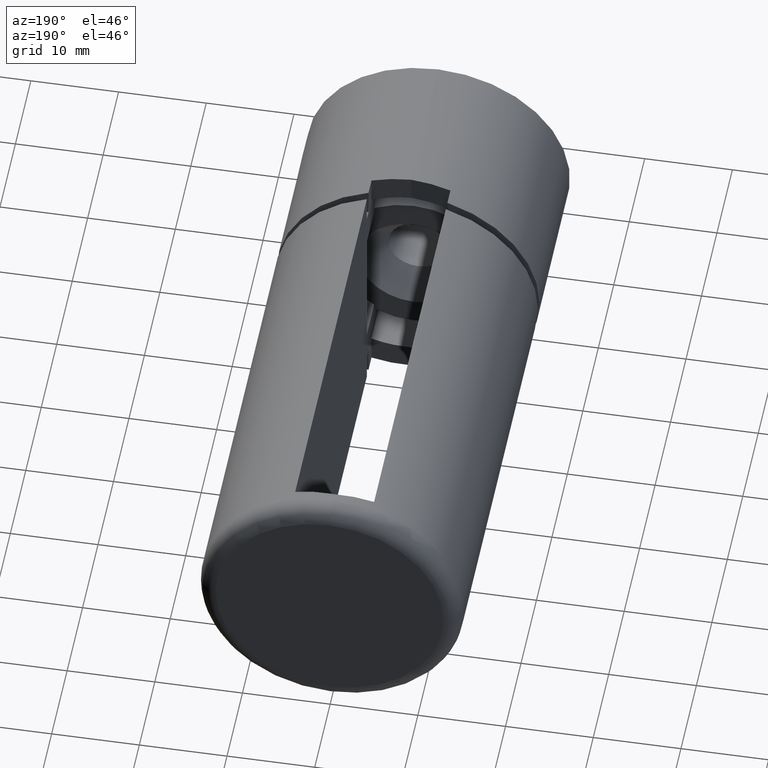
[diagram: clean part render]
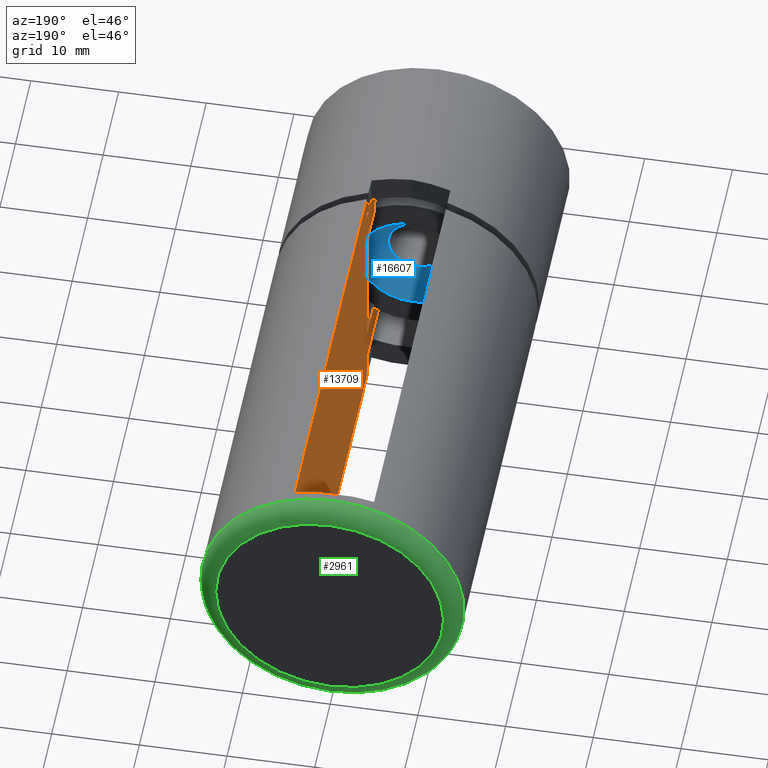
[diagram: same view with three faces highlighted in distinct colors, each labeled with its STEP entity id]
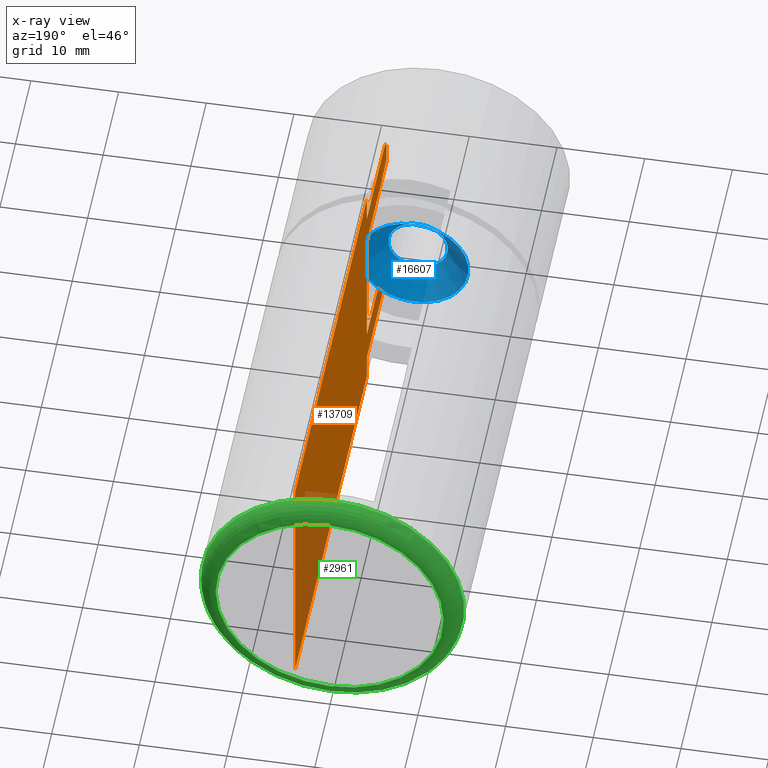
[diagram: x-ray of the same camera — body ghosted, the three highlighted faces saturated]
A machine part, auxiliary view with three faces highlighted in distinct colors.
The next image is the same camera in x-ray (body ghosted, the three faces saturated) — at least one of them is partly hidden behind the body in this view.
Their STEP definitions:

[orange] entity #13709 — the highlighted planar face has unit normal (1, 0, 0).
#119 = AXIS2_PLACEMENT_3D ( 'NONE', #9092, #9266, #11873 ) ;
#292 = EDGE_CURVE ( 'NONE', #3386, #7117, #3142, .T. ) ;
#340 = VECTOR ( 'NONE', #1588, 1000.000000000000000 ) ;
#530 = CARTESIAN_POINT ( 'NONE',  ( 4.499999999999995600, 51.14999999999999900, -30.00000000000000700 ) ) ;
#578 = DIRECTION ( 'NONE',  ( -0.0000000000000000000, -1.000000000000000000, -0.0000000000000000000 ) ) ;
#592 = VECTOR ( 'NONE', #11733, 1000.000000000000000 ) ;
#616 = ORIENTED_EDGE ( 'NONE', *, *, #11158, .T. ) ;
#724 = DIRECTION ( 'NONE',  ( -0.0000000000000000000, 1.000000000000000000, -0.0000000000000000000 ) ) ;
#933 = DIRECTION ( 'NONE',  ( -1.156482317317871700E-016, 0.0000000000000000000, -1.000000000000000000 ) ) ;
#1088 = VERTEX_POINT ( 'NONE', #15948 ) ;
#1155 = CARTESIAN_POINT ( 'NONE',  ( 4.499999999999999100, 51.14999999999999900, -15.00000000000000000 ) ) ;
#1163 = LINE ( 'NONE', #13875, #8302 ) ;
#1182 = VECTOR ( 'NONE', #6266, 1000.000000000000000 ) ;
#1241 = ORIENTED_EDGE ( 'NONE', *, *, #7351, .T. ) ;
#1350 = VERTEX_POINT ( 'NONE', #10173 ) ;
#1452 = VERTEX_POINT ( 'NONE', #14216 ) ;
#1588 = DIRECTION ( 'NONE',  ( 0.0000000000000000000, 1.000000000000000000, 0.0000000000000000000 ) ) ;
#1796 = ORIENTED_EDGE ( 'NONE', *, *, #292, .F. ) ;
#1988 = ORIENTED_EDGE ( 'NONE', *, *, #13233, .T. ) ;
#2117 = CARTESIAN_POINT ( 'NONE',  ( 4.499999999999998200, 26.40126265847082700, -7.504165509901821600 ) ) ;
#2159 = VERTEX_POINT ( 'NONE', #7864 ) ;
#2292 = ORIENTED_EDGE ( 'NONE', *, *, #6313, .T. ) ;
#2448 = VECTOR ( 'NONE', #2839, 1000.000000000000000 ) ;
#2612 = CARTESIAN_POINT ( 'NONE',  ( 4.500000000000000000, 62.83999999999999600, 11.17821542107683700 ) ) ;
#2839 = DIRECTION ( 'NONE',  ( -0.0000000000000000000, -1.000000000000000000, -0.0000000000000000000 ) ) ;
#2969 = EDGE_CURVE ( 'NONE', #13184, #17180, #15193, .T. ) ;
#3142 = LINE ( 'NONE', #17145, #16922 ) ;
#3386 = VERTEX_POINT ( 'NONE', #10027 ) ;
#3439 = VERTEX_POINT ( 'NONE', #15291 ) ;
#3677 = EDGE_CURVE ( 'NONE', #10352, #1088, #9756, .T. ) ;
#3776 = CARTESIAN_POINT ( 'NONE',  ( 4.500000000000000000, 63.84000000000001100, 10.09219995838370000 ) ) ;
#3996 = CARTESIAN_POINT ( 'NONE',  ( 4.500000000000000000, 63.50813944778180100, 10.45555572988373400 ) ) ;
#4814 = CARTESIAN_POINT ( 'NONE',  ( 4.500000000000000000, 63.84000000000001100, 7.504165509901819900 ) ) ;
#4868 = ORIENTED_EDGE ( 'NONE', *, *, #2969, .T. ) ;
#5368 = B_SPLINE_CURVE_WITH_KNOTS ( 'NONE', 3,
 ( #2612, #11952, #3996, #10565 ),
 .UNSPECIFIED., .F., .F.,
 ( 4, 4 ),
 ( 0.0000000000000000000, 0.001476289126563158400 ),
 .UNSPECIFIED. ) ;
#5461 = VERTEX_POINT ( 'NONE', #16781 ) ;
#5508 = VECTOR ( 'NONE', #578, 1000.000000000000000 ) ;
#5796 = VECTOR ( 'NONE', #933, 1000.000000000000000 ) ;
#6024 = ORIENTED_EDGE ( 'NONE', *, *, #15888, .F. ) ;
#6049 = LINE ( 'NONE', #12223, #2448 ) ;
#6204 = CARTESIAN_POINT ( 'NONE',  ( 4.500000000000000000, 26.40126265847082700, 7.504165509901819900 ) ) ;
#6230 = VECTOR ( 'NONE', #15586, 1000.000000000000000 ) ;
#6266 = DIRECTION ( 'NONE',  ( -0.0000000000000000000, -0.0000000000000000000, 1.000000000000000000 ) ) ;
#6313 = EDGE_CURVE ( 'NONE', #3439, #7117, #8489, .T. ) ;
#6466 = PLANE ( 'NONE',  #119 ) ;
#6738 = VECTOR ( 'NONE', #15033, 1000.000000000000000 ) ;
#6975 = VERTEX_POINT ( 'NONE', #15563 ) ;
#7072 = ORIENTED_EDGE ( 'NONE', *, *, #14966, .F. ) ;
#7117 = VERTEX_POINT ( 'NONE', #12947 ) ;
#7160 = CARTESIAN_POINT ( 'NONE',  ( 4.499999999999997300, 51.14999999999999900, -14.30908802125418300 ) ) ;
#7179 = LINE ( 'NONE', #8658, #5508 ) ;
#7240 = DIRECTION ( 'NONE',  ( -0.0000000000000000000, -0.0000000000000000000, 1.000000000000000000 ) ) ;
#7351 = EDGE_CURVE ( 'NONE', #2159, #9749, #15861, .T. ) ;
#7864 = CARTESIAN_POINT ( 'NONE',  ( 4.499999999999998200, 51.14999999999999900, -7.504165509901821600 ) ) ;
#8003 = CARTESIAN_POINT ( 'NONE',  ( 4.499999999999998200, 63.84000000000001100, -7.504165509901821600 ) ) ;
#8287 = ORIENTED_EDGE ( 'NONE', *, *, #11165, .T. ) ;
#8302 = VECTOR ( 'NONE', #7240, 1000.000000000000000 ) ;
#8489 = B_SPLINE_CURVE_WITH_KNOTS ( 'NONE', 3,
 ( #15092, #13781, #13724, #15034 ),
 .UNSPECIFIED., .F., .F.,
 ( 4, 4 ),
 ( 1.734723475976807100E-018, 0.001476289126563161000 ),
 .UNSPECIFIED. ) ;
#8658 = CARTESIAN_POINT ( 'NONE',  ( 4.499999999999997300, 51.14999999999999900, 14.30908802125418300 ) ) ;
#8938 = LINE ( 'NONE', #6204, #6230 ) ;
#9092 = CARTESIAN_POINT ( 'NONE',  ( 4.499999999999995600, -9.521245248470048500, -30.00000000000000700 ) ) ;
#9266 = DIRECTION ( 'NONE',  ( 1.000000000000000000, 0.0000000000000000000, -1.156482317317871700E-016 ) ) ;
#9374 = DIRECTION ( 'NONE',  ( -1.156482317317871700E-016, 0.0000000000000000000, -1.000000000000000000 ) ) ;
#9749 = VERTEX_POINT ( 'NONE', #8003 ) ;
#9756 = LINE ( 'NONE', #7160, #340 ) ;
#9760 = ORIENTED_EDGE ( 'NONE', *, *, #11812, .T. ) ;
#9815 = ORIENTED_EDGE ( 'NONE', *, *, #3677, .F. ) ;
#10027 = CARTESIAN_POINT ( 'NONE',  ( 4.499999999999999100, 51.14999999999999900, -11.17821542107683900 ) ) ;
#10173 = CARTESIAN_POINT ( 'NONE',  ( 4.500000000000000000, 62.83999999999999600, 11.17821542107683700 ) ) ;
#10352 = VERTEX_POINT ( 'NONE', #11817 ) ;
#10374 = CARTESIAN_POINT ( 'NONE',  ( 4.499999999999999100, 63.84000000000001100, -5.204170427930421300E-016 ) ) ;
#10565 = CARTESIAN_POINT ( 'NONE',  ( 4.500000000000000000, 63.84000000000001100, 10.09219995838370000 ) ) ;
#10587 = LINE ( 'NONE', #11803, #13510 ) ;
#10808 = LINE ( 'NONE', #11662, #1182 ) ;
#11158 = EDGE_CURVE ( 'NONE', #10352, #1452, #10808, .T. ) ;
#11165 = EDGE_CURVE ( 'NONE', #9749, #3439, #10587, .T. ) ;
#11546 = LINE ( 'NONE', #530, #6738 ) ;
#11628 = VERTEX_POINT ( 'NONE', #12762 ) ;
#11662 = CARTESIAN_POINT ( 'NONE',  ( 4.500000000000003600, 4.735835006773702300, -15.00000000000000000 ) ) ;
#11733 = DIRECTION ( 'NONE',  ( -0.0000000000000000000, -0.0000000000000000000, 1.000000000000000000 ) ) ;
#11803 = CARTESIAN_POINT ( 'NONE',  ( 4.499999999999999100, 63.84000000000001100, -5.204170427930421300E-016 ) ) ;
#11812 = EDGE_CURVE ( 'NONE', #17180, #6975, #8938, .T. ) ;
#11817 = CARTESIAN_POINT ( 'NONE',  ( 4.500000000000003600, 4.735835006773702300, -14.30908802125418300 ) ) ;
#11873 = DIRECTION ( 'NONE',  ( -1.156482317317871700E-016, 0.0000000000000000000, -1.000000000000000000 ) ) ;
#11952 = CARTESIAN_POINT ( 'NONE',  ( 4.500000000000000000, 63.17466950106960900, 10.81744517860280700 ) ) ;
#12146 = EDGE_CURVE ( 'NONE', #5461, #11628, #1163, .T. ) ;
#12223 = CARTESIAN_POINT ( 'NONE',  ( 4.500000000000000000, 63.84000000000001100, 11.17821542107683700 ) ) ;
#12645 = ORIENTED_EDGE ( 'NONE', *, *, #13813, .F. ) ;
#12762 = CARTESIAN_POINT ( 'NONE',  ( 4.499999999999999100, 51.14999999999999900, 14.30908802125418300 ) ) ;
#12947 = CARTESIAN_POINT ( 'NONE',  ( 4.499999999999998200, 62.83999999999999600, -11.17821542107683700 ) ) ;
#13132 = VECTOR ( 'NONE', #724, 1000.000000000000000 ) ;
#13144 = EDGE_CURVE ( 'NONE', #1088, #3386, #16251, .T. ) ;
#13184 = VERTEX_POINT ( 'NONE', #3776 ) ;
#13233 = EDGE_CURVE ( 'NONE', #1350, #13184, #5368, .T. ) ;
#13510 = VECTOR ( 'NONE', #9374, 1000.000000000000000 ) ;
#13709 = ADVANCED_FACE ( 'NONE', ( #16472 ), #6466, .F. ) ;
#13724 = CARTESIAN_POINT ( 'NONE',  ( 4.499999999999998200, 63.17466950106960900, -10.81744517860281200 ) ) ;
#13781 = CARTESIAN_POINT ( 'NONE',  ( 4.499999999999998200, 63.50813944778180100, -10.45555572988373600 ) ) ;
#13813 = EDGE_CURVE ( 'NONE', #1350, #5461, #6049, .T. ) ;
#13875 = CARTESIAN_POINT ( 'NONE',  ( 4.499999999999999100, 51.14999999999999900, -15.00000000000000000 ) ) ;
#14216 = CARTESIAN_POINT ( 'NONE',  ( 4.500000000000003600, 4.735835006773702300, 14.30908802125418300 ) ) ;
#14567 = ORIENTED_EDGE ( 'NONE', *, *, #13144, .F. ) ;
#14654 = DIRECTION ( 'NONE',  ( 0.0000000000000000000, 1.000000000000000000, 0.0000000000000000000 ) ) ;
#14966 = EDGE_CURVE ( 'NONE', #11628, #1452, #7179, .T. ) ;
#15033 = DIRECTION ( 'NONE',  ( 1.156482317317871700E-016, -0.0000000000000000000, 1.000000000000000000 ) ) ;
#15034 = CARTESIAN_POINT ( 'NONE',  ( 4.499999999999998200, 62.83999999999999600, -11.17821542107683700 ) ) ;
#15064 = ORIENTED_EDGE ( 'NONE', *, *, #12146, .F. ) ;
#15092 = CARTESIAN_POINT ( 'NONE',  ( 4.499999999999998200, 63.84000000000001100, -10.09219995838370000 ) ) ;
#15193 = LINE ( 'NONE', #10374, #5796 ) ;
#15291 = CARTESIAN_POINT ( 'NONE',  ( 4.499999999999998200, 63.84000000000001100, -10.09219995838370000 ) ) ;
#15563 = CARTESIAN_POINT ( 'NONE',  ( 4.500000000000000000, 51.14999999999999900, 7.504165509901819900 ) ) ;
#15586 = DIRECTION ( 'NONE',  ( 0.0000000000000000000, -1.000000000000000000, 0.0000000000000000000 ) ) ;
#15861 = LINE ( 'NONE', #2117, #13132 ) ;
#15888 = EDGE_CURVE ( 'NONE', #2159, #6975, #11546, .T. ) ;
#15948 = CARTESIAN_POINT ( 'NONE',  ( 4.499999999999999100, 51.14999999999999900, -14.30908802125418500 ) ) ;
#16251 = LINE ( 'NONE', #1155, #592 ) ;
#16472 = FACE_OUTER_BOUND ( 'NONE', #16812, .T. ) ;
#16781 = CARTESIAN_POINT ( 'NONE',  ( 4.499999999999999100, 51.14999999999999900, 11.17821542107683900 ) ) ;
#16812 = EDGE_LOOP ( 'NONE', ( #6024, #1241, #8287, #2292, #1796, #14567, #9815, #616, #7072, #15064, #12645, #1988, #4868, #9760 ) ) ;
#16922 = VECTOR ( 'NONE', #14654, 1000.000000000000000 ) ;
#17145 = CARTESIAN_POINT ( 'NONE',  ( 4.499999999999998200, 63.84000000000001100, -11.17821542107683700 ) ) ;
#17180 = VERTEX_POINT ( 'NONE', #4814 ) ;

[blue] entity #16607 — the highlighted conical surface has half-angle 45 deg.
#802 = CIRCLE ( 'NONE', #16973, 3.399999999999997700 ) ;
#2585 = EDGE_LOOP ( 'NONE', ( #6171 ) ) ;
#2996 = AXIS2_PLACEMENT_3D ( 'NONE', #17045, #12999, #3715 ) ;
#3384 = CARTESIAN_POINT ( 'NONE',  ( 0.0000000000000000000, 16.00000000000000000, 0.0000000000000000000 ) ) ;
#3594 = VERTEX_POINT ( 'NONE', #5496 ) ;
#3715 = DIRECTION ( 'NONE',  ( 0.0000000000000000000, 0.0000000000000000000, 1.000000000000000000 ) ) ;
#3920 = CIRCLE ( 'NONE', #2996, 6.250000000000000000 ) ;
#5496 = CARTESIAN_POINT ( 'NONE',  ( 0.0000000000000000000, 16.00000000000000000, 6.250000000000000000 ) ) ;
#6171 = ORIENTED_EDGE ( 'NONE', *, *, #10281, .T. ) ;
#6521 = DIRECTION ( 'NONE',  ( 0.0000000000000000000, 0.0000000000000000000, 1.000000000000000000 ) ) ;
#7759 = VERTEX_POINT ( 'NONE', #13453 ) ;
#7999 = FACE_BOUND ( 'NONE', #12008, .T. ) ;
#8683 = DIRECTION ( 'NONE',  ( 0.0000000000000000000, 0.0000000000000000000, 1.000000000000000000 ) ) ;
#9430 = AXIS2_PLACEMENT_3D ( 'NONE', #3384, #13907, #8683 ) ;
#9549 = EDGE_CURVE ( 'NONE', #7759, #7759, #802, .T. ) ;
#10281 = EDGE_CURVE ( 'NONE', #3594, #3594, #3920, .T. ) ;
#12008 = EDGE_LOOP ( 'NONE', ( #16641 ) ) ;
#12759 = CONICAL_SURFACE ( 'NONE', #9430, 6.250000000000000000, 0.7853981633974487200 ) ;
#12999 = DIRECTION ( 'NONE',  ( -0.0000000000000000000, 1.000000000000000000, -0.0000000000000000000 ) ) ;
#13453 = CARTESIAN_POINT ( 'NONE',  ( 0.0000000000000000000, 13.15000000000000000, 3.399999999999997700 ) ) ;
#13907 = DIRECTION ( 'NONE',  ( -0.0000000000000000000, 1.000000000000000000, -0.0000000000000000000 ) ) ;
#14526 = DIRECTION ( 'NONE',  ( 0.0000000000000000000, -1.000000000000000000, 0.0000000000000000000 ) ) ;
#14757 = CARTESIAN_POINT ( 'NONE',  ( 0.0000000000000000000, 13.15000000000000000, 0.0000000000000000000 ) ) ;
#16607 = ADVANCED_FACE ( 'NONE', ( #7999, #16744 ), #12759, .F. ) ;
#16641 = ORIENTED_EDGE ( 'NONE', *, *, #9549, .T. ) ;
#16744 = FACE_OUTER_BOUND ( 'NONE', #2585, .T. ) ;
#16973 = AXIS2_PLACEMENT_3D ( 'NONE', #14757, #14526, #6521 ) ;
#17045 = CARTESIAN_POINT ( 'NONE',  ( 0.0000000000000000000, 16.00000000000000000, 0.0000000000000000000 ) ) ;

[green] entity #2961 — the highlighted toroidal blend (fillet) surface has major radius 13 mm and minor (blend) radius 2 mm.
#500 = DIRECTION ( 'NONE',  ( -0.0000000000000000000, 1.000000000000000000, -0.0000000000000000000 ) ) ;
#978 = FACE_OUTER_BOUND ( 'NONE', #4569, .T. ) ;
#1068 = ORIENTED_EDGE ( 'NONE', *, *, #13842, .F. ) ;
#2197 = EDGE_LOOP ( 'NONE', ( #16896 ) ) ;
#2787 = CARTESIAN_POINT ( 'NONE',  ( 0.0000000000000000000, 1.500000000000000000, -13.00000000000000000 ) ) ;
#2961 = ADVANCED_FACE ( 'NONE', ( #978, #6407 ), #12870, .T. ) ;
#3729 = AXIS2_PLACEMENT_3D ( 'NONE', #16313, #500, #11181 ) ;
#4005 = VERTEX_POINT ( 'NONE', #2787 ) ;
#4569 = EDGE_LOOP ( 'NONE', ( #1068 ) ) ;
#5148 = DIRECTION ( 'NONE',  ( 0.0000000000000000000, 0.0000000000000000000, -1.000000000000000000 ) ) ;
#6407 = FACE_OUTER_BOUND ( 'NONE', #2197, .T. ) ;
#6703 = VERTEX_POINT ( 'NONE', #16028 ) ;
#7613 = DIRECTION ( 'NONE',  ( 0.0000000000000000000, -1.000000000000000000, 0.0000000000000000000 ) ) ;
#8876 = AXIS2_PLACEMENT_3D ( 'NONE', #11767, #7613, #5148 ) ;
#10211 = AXIS2_PLACEMENT_3D ( 'NONE', #13331, #11931, #16082 ) ;
#11181 = DIRECTION ( 'NONE',  ( 0.0000000000000000000, 0.0000000000000000000, -1.000000000000000000 ) ) ;
#11767 = CARTESIAN_POINT ( 'NONE',  ( 0.0000000000000000000, 3.500000000000003100, 0.0000000000000000000 ) ) ;
#11931 = DIRECTION ( 'NONE',  ( 0.0000000000000000000, -1.000000000000000000, 0.0000000000000000000 ) ) ;
#12159 = CIRCLE ( 'NONE', #10211, 13.00000000000000000 ) ;
#12870 = TOROIDAL_SURFACE ( 'NONE', #8876, 13.00000000000000000, 2.000000000000000000 ) ;
#13331 = CARTESIAN_POINT ( 'NONE',  ( 0.0000000000000000000, 1.500000000000000000, 0.0000000000000000000 ) ) ;
#13842 = EDGE_CURVE ( 'NONE', #6703, #6703, #15024, .T. ) ;
#15024 = CIRCLE ( 'NONE', #3729, 15.00000000000000000 ) ;
#15212 = EDGE_CURVE ( 'NONE', #4005, #4005, #12159, .T. ) ;
#16028 = CARTESIAN_POINT ( 'NONE',  ( 0.0000000000000000000, 3.500000000000003100, -15.00000000000000000 ) ) ;
#16082 = DIRECTION ( 'NONE',  ( 0.0000000000000000000, 0.0000000000000000000, -1.000000000000000000 ) ) ;
#16313 = CARTESIAN_POINT ( 'NONE',  ( 0.0000000000000000000, 3.500000000000003100, 0.0000000000000000000 ) ) ;
#16896 = ORIENTED_EDGE ( 'NONE', *, *, #15212, .F. ) ;